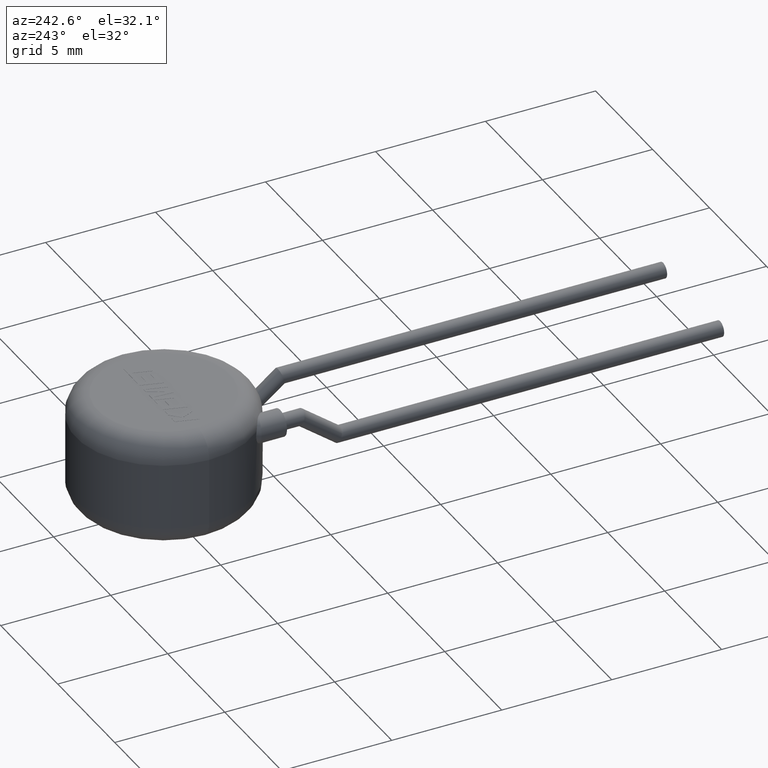
[diagram: clean part render]
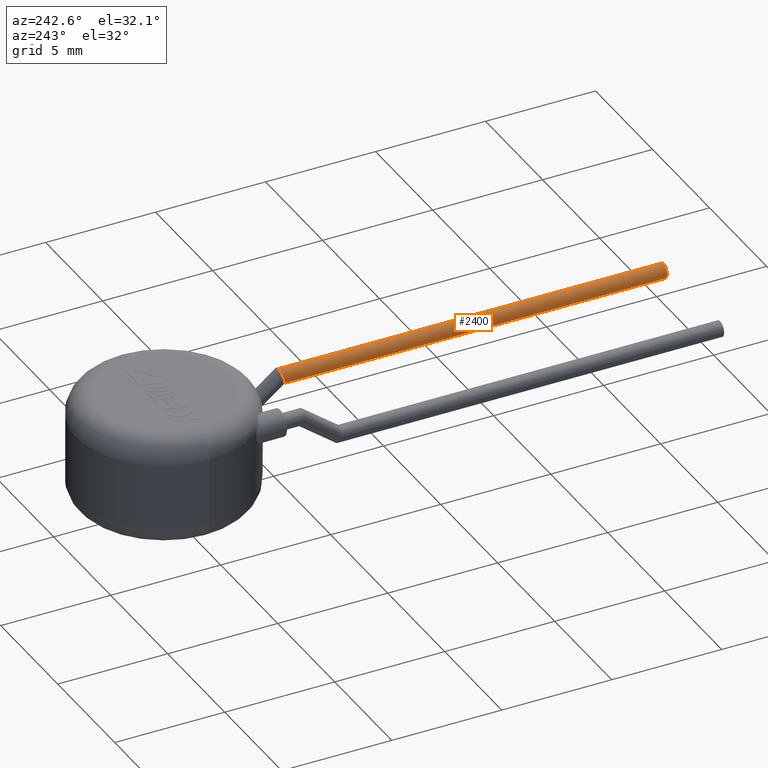
[diagram: same view with one face highlighted and labeled with its STEP entity id]
A machine part, auxiliary view. The second image highlights one B-rep face of the part: STEP entity #2400.
In plain terms, the highlighted cylindrical surface (edge-blend (fillet) strip) has radius 0.35 mm, axis along (0, -1, 0).
Its self-contained STEP definition (entity closure, byte-faithful):
#28 = VERTEX_POINT ( 'NONE', #267 ) ;
#48 = CARTESIAN_POINT ( 'NONE',  ( 1.799999999999999822, -6.718486699666266659, 2.150000000000000355 ) ) ;
#142 = DIRECTION ( 'NONE',  ( 0.000000000000000000, -1.000000000000000000, 0.000000000000000000 ) ) ;
#267 = CARTESIAN_POINT ( 'NONE',  ( 2.499999999999999556, -24.00000000000000000, 2.849999999999999201 ) ) ;
#354 = ORIENTED_EDGE ( 'NONE', *, *, #370, .T. ) ;
#370 = EDGE_CURVE ( 'NONE', #2320, #2559, #774, .T. ) ;
#405 =( BOUNDED_CURVE ( )  B_SPLINE_CURVE ( 3, ( #2434, #48, #933, #2186 ),
 .UNSPECIFIED., .F., .F. ) 
 B_SPLINE_CURVE_WITH_KNOTS ( ( 4, 4 ),
 ( 3.141592653589793116, 6.283185307179586232 ),
 .UNSPECIFIED. ) 
 CURVE ( )  GEOMETRIC_REPRESENTATION_ITEM ( )  RATIONAL_B_SPLINE_CURVE ( ( 1.000000000000000000, 0.3333333333333333703, 0.3333333333333333703, 1.000000000000000000 ) ) 
 REPRESENTATION_ITEM ( '' )  );
#571 = CARTESIAN_POINT ( 'NONE',  ( 2.499999999999999556, -6.369664630367109837, 2.849999999999999201 ) ) ;
#655 = CARTESIAN_POINT ( 'NONE',  ( 2.499999999999999556, -6.369664630367109837, 2.499999999999999112 ) ) ;
#674 = DIRECTION ( 'NONE',  ( 0.000000000000000000, 0.000000000000000000, -1.000000000000000000 ) ) ;
#774 = LINE ( 'NONE', #1192, #3319 ) ;
#821 = VERTEX_POINT ( 'NONE', #3263 ) ;
#933 = CARTESIAN_POINT ( 'NONE',  ( 1.799999999999999822, -6.481513300333734406, 2.850000000000000533 ) ) ;
#964 = ORIENTED_EDGE ( 'NONE', *, *, #2566, .F. ) ;
#1192 = CARTESIAN_POINT ( 'NONE',  ( 2.499999999999999556, -6.369664630367109837, 2.149999999999999023 ) ) ;
#1430 = CARTESIAN_POINT ( 'NONE',  ( 2.499999999999999556, -24.00000000000000000, 2.149999999999999023 ) ) ;
#1633 = CARTESIAN_POINT ( 'NONE',  ( 2.499999999999999556, -24.00000000000000000, 2.499999999999999112 ) ) ;
#1692 = ORIENTED_EDGE ( 'NONE', *, *, #2868, .F. ) ;
#1789 = AXIS2_PLACEMENT_3D ( 'NONE', #655, #142, #1853 ) ;
#1793 = DIRECTION ( 'NONE',  ( 0.000000000000000000, -1.000000000000000000, 0.000000000000000000 ) ) ;
#1853 = DIRECTION ( 'NONE',  ( 0.000000000000000000, 0.000000000000000000, -1.000000000000000000 ) ) ;
#2152 = AXIS2_PLACEMENT_3D ( 'NONE', #1633, #2508, #674 ) ;
#2186 = CARTESIAN_POINT ( 'NONE',  ( 2.499999999999999556, -6.481513300333735295, 2.849999999999999201 ) ) ;
#2263 = CARTESIAN_POINT ( 'NONE',  ( 2.499999999999999556, -6.718486699666264883, 2.149999999999999023 ) ) ;
#2320 = VERTEX_POINT ( 'NONE', #2263 ) ;
#2400 = ADVANCED_FACE ( 'NONE', ( #3686 ), #3669, .T. ) ;
#2434 = CARTESIAN_POINT ( 'NONE',  ( 2.499999999999999556, -6.718486699666264883, 2.149999999999999023 ) ) ;
#2508 = DIRECTION ( 'NONE',  ( 0.000000000000000000, -1.000000000000000000, 0.000000000000000000 ) ) ;
#2559 = VERTEX_POINT ( 'NONE', #1430 ) ;
#2566 = EDGE_CURVE ( 'NONE', #821, #28, #3217, .T. ) ;
#2646 = DIRECTION ( 'NONE',  ( 0.000000000000000000, -1.000000000000000000, 0.000000000000000000 ) ) ;
#2810 = EDGE_LOOP ( 'NONE', ( #964, #3613, #354, #1692 ) ) ;
#2868 = EDGE_CURVE ( 'NONE', #28, #2559, #3147, .T. ) ;
#2952 = VECTOR ( 'NONE', #2646, 1000.000000000000000 ) ;
#2977 = EDGE_CURVE ( 'NONE', #2320, #821, #405, .T. ) ;
#3147 = CIRCLE ( 'NONE', #2152, 0.3500000000000000333 ) ;
#3217 = LINE ( 'NONE', #571, #2952 ) ;
#3263 = CARTESIAN_POINT ( 'NONE',  ( 2.499999999999999556, -6.481513300333735295, 2.849999999999999201 ) ) ;
#3319 = VECTOR ( 'NONE', #1793, 1000.000000000000000 ) ;
#3613 = ORIENTED_EDGE ( 'NONE', *, *, #2977, .F. ) ;
#3669 = CYLINDRICAL_SURFACE ( 'NONE', #1789, 0.3500000000000000333 ) ;
#3686 = FACE_OUTER_BOUND ( 'NONE', #2810, .T. ) ;